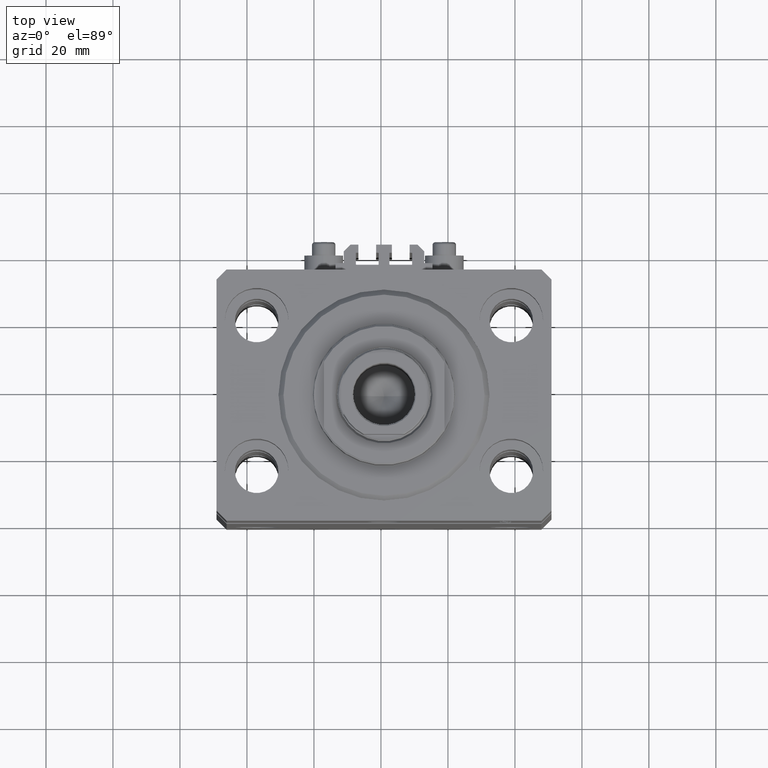
[diagram: clean part render]
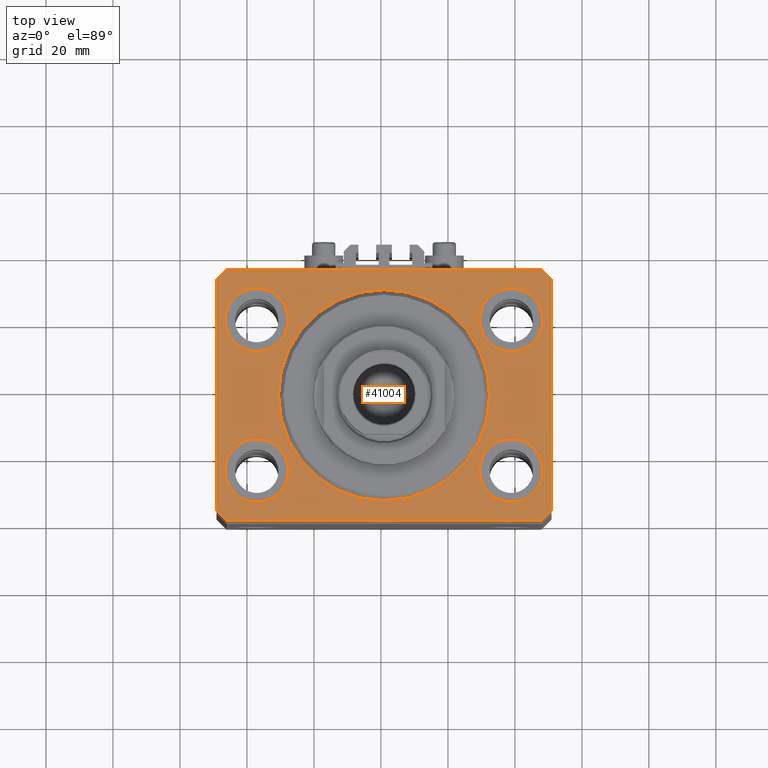
[diagram: same view with one face highlighted and labeled with its STEP entity id]
A machine part, top view. The second image highlights one B-rep face of the part: STEP entity #41004.
In plain terms, the highlighted planar face has unit normal (0, 0, 1).
Its self-contained STEP definition (entity closure, byte-faithful):
#192 = DIRECTION ( 'NONE',  ( 1.000000000000000000, 0.000000000000000000, 0.000000000000000000 ) ) ;
#778 = CARTESIAN_POINT ( 'NONE',  ( -50.00000000000000000, -34.50000000000000000, 0.000000000000000000 ) ) ;
#1196 = VECTOR ( 'NONE', #10112, 1000.000000000000000 ) ;
#1244 = DIRECTION ( 'NONE',  ( 1.000000000000000000, 0.000000000000000000, 0.000000000000000000 ) ) ;
#1389 = CARTESIAN_POINT ( 'NONE',  ( 28.50000000000000355, 22.50000000000001421, 0.000000000000000000 ) ) ;
#1971 = VERTEX_POINT ( 'NONE', #17000 ) ;
#2107 = VERTEX_POINT ( 'NONE', #21132 ) ;
#2744 = ORIENTED_EDGE ( 'NONE', *, *, #12785, .F. ) ;
#3197 = ORIENTED_EDGE ( 'NONE', *, *, #47906, .T. ) ;
#3221 = EDGE_CURVE ( 'NONE', #8132, #22936, #27393, .T. ) ;
#3361 = DIRECTION ( 'NONE',  ( 0.000000000000000000, 0.000000000000000000, 1.000000000000000000 ) ) ;
#3716 = VERTEX_POINT ( 'NONE', #38798 ) ;
#3733 = EDGE_CURVE ( 'NONE', #41837, #38277, #5393, .T. ) ;
#4122 = CARTESIAN_POINT ( 'NONE',  ( 0.000000000000000000, 0.000000000000000000, 0.000000000000000000 ) ) ;
#4661 = DIRECTION ( 'NONE',  ( 0.000000000000000000, 0.000000000000000000, 1.000000000000000000 ) ) ;
#4864 = VERTEX_POINT ( 'NONE', #26964 ) ;
#5261 = AXIS2_PLACEMENT_3D ( 'NONE', #9493, #14281, #6998 ) ;
#5393 = LINE ( 'NONE', #778, #28933 ) ;
#5867 = AXIS2_PLACEMENT_3D ( 'NONE', #12902, #12657, #39024 ) ;
#6266 = VERTEX_POINT ( 'NONE', #30150 ) ;
#6406 = VERTEX_POINT ( 'NONE', #34754 ) ;
#6494 = CARTESIAN_POINT ( 'NONE',  ( 47.00000000000056843, 37.49999999999999289, 0.000000000000000000 ) ) ;
#6998 = DIRECTION ( 'NONE',  ( 1.000000000000000000, 0.000000000000000000, 0.000000000000000000 ) ) ;
#7002 = CIRCLE ( 'NONE', #44392, 9.500000000000001776 ) ;
#7026 = CARTESIAN_POINT ( 'NONE',  ( 38.00000000000000711, -22.50000000000000000, 0.000000000000000000 ) ) ;
#7372 = CARTESIAN_POINT ( 'NONE',  ( 47.00000000000000000, -37.50000000000000711, 0.000000000000000000 ) ) ;
#7384 = CIRCLE ( 'NONE', #15926, 9.500000000000001776 ) ;
#8132 = VERTEX_POINT ( 'NONE', #44015 ) ;
#8179 = CARTESIAN_POINT ( 'NONE',  ( 50.00000000000000000, -34.50000000000000711, 0.000000000000000000 ) ) ;
#8291 = ORIENTED_EDGE ( 'NONE', *, *, #43514, .F. ) ;
#8559 = VECTOR ( 'NONE', #17693, 1000.000000000000000 ) ;
#8708 = AXIS2_PLACEMENT_3D ( 'NONE', #4122, #8725, #12361 ) ;
#8725 = DIRECTION ( 'NONE',  ( 0.000000000000000000, 0.000000000000000000, 1.000000000000000000 ) ) ;
#9060 = EDGE_CURVE ( 'NONE', #2107, #40246, #41680, .T. ) ;
#9265 = EDGE_CURVE ( 'NONE', #14742, #1971, #24439, .T. ) ;
#9493 = CARTESIAN_POINT ( 'NONE',  ( -38.00000000000000711, -22.50000000000000000, 0.000000000000000000 ) ) ;
#10112 = DIRECTION ( 'NONE',  ( 7.441712302741091634E-15, 1.000000000000000000, 0.000000000000000000 ) ) ;
#10260 = DIRECTION ( 'NONE',  ( 1.000000000000000000, 0.000000000000000000, 0.000000000000000000 ) ) ;
#10399 = EDGE_CURVE ( 'NONE', #38277, #6406, #10836, .T. ) ;
#10742 = DIRECTION ( 'NONE',  ( 1.000000000000000000, 0.000000000000000000, -0.000000000000000000 ) ) ;
#10836 = LINE ( 'NONE', #25723, #15896 ) ;
#10889 = VERTEX_POINT ( 'NONE', #24717 ) ;
#11843 = DIRECTION ( 'NONE',  ( 0.000000000000000000, 0.000000000000000000, 1.000000000000000000 ) ) ;
#12021 = ORIENTED_EDGE ( 'NONE', *, *, #10399, .T. ) ;
#12361 = DIRECTION ( 'NONE',  ( 1.000000000000000000, 0.000000000000000000, 0.000000000000000000 ) ) ;
#12507 = CARTESIAN_POINT ( 'NONE',  ( 38.00000000000000711, 22.50000000000001421, 0.000000000000000000 ) ) ;
#12657 = DIRECTION ( 'NONE',  ( 0.000000000000000000, 0.000000000000000000, 1.000000000000000000 ) ) ;
#12764 = EDGE_CURVE ( 'NONE', #24082, #10889, #40922, .T. ) ;
#12771 = DIRECTION ( 'NONE',  ( 0.000000000000000000, 0.000000000000000000, 1.000000000000000000 ) ) ;
#12785 = EDGE_CURVE ( 'NONE', #22936, #8132, #24541, .T. ) ;
#12849 = VERTEX_POINT ( 'NONE', #25090 ) ;
#12902 = CARTESIAN_POINT ( 'NONE',  ( -38.00000000000000711, 22.50000000000000000, 0.000000000000000000 ) ) ;
#13837 = DIRECTION ( 'NONE',  ( 0.000000000000000000, 0.000000000000000000, 1.000000000000000000 ) ) ;
#14006 = CARTESIAN_POINT ( 'NONE',  ( 50.00000000000000000, -34.50000000000000711, 0.000000000000000000 ) ) ;
#14281 = DIRECTION ( 'NONE',  ( 0.000000000000000000, 0.000000000000000000, 1.000000000000000000 ) ) ;
#14394 = CARTESIAN_POINT ( 'NONE',  ( 0.000000000000000000, 0.000000000000000000, 0.000000000000000000 ) ) ;
#14639 = EDGE_CURVE ( 'NONE', #18501, #6266, #46412, .T. ) ;
#14707 = EDGE_CURVE ( 'NONE', #20860, #41837, #19652, .T. ) ;
#14742 = VERTEX_POINT ( 'NONE', #1389 ) ;
#14801 = EDGE_CURVE ( 'NONE', #6266, #18501, #7384, .T. ) ;
#15618 = DIRECTION ( 'NONE',  ( 0.7071067811865491270, -0.7071067811865459074, 0.000000000000000000 ) ) ;
#15753 = CARTESIAN_POINT ( 'NONE',  ( -50.00000000000001421, 34.50000000000000000, 0.000000000000000000 ) ) ;
#15896 = VECTOR ( 'NONE', #36945, 1000.000000000000000 ) ;
#15926 = AXIS2_PLACEMENT_3D ( 'NONE', #31599, #11843, #26727 ) ;
#16440 = CARTESIAN_POINT ( 'NONE',  ( -50.00000000000000000, -34.50000000000000000, 0.000000000000000000 ) ) ;
#16549 = ORIENTED_EDGE ( 'NONE', *, *, #14707, .T. ) ;
#16841 = AXIS2_PLACEMENT_3D ( 'NONE', #23515, #12771, #10260 ) ;
#16896 = CARTESIAN_POINT ( 'NONE',  ( -47.00000000000000000, -37.49999999999999289, 0.000000000000000000 ) ) ;
#16965 = EDGE_LOOP ( 'NONE', ( #21502, #37317, #16549, #27517, #12021, #3197, #41868, #42587 ) ) ;
#17000 = CARTESIAN_POINT ( 'NONE',  ( 47.50000000000000711, 22.50000000000001421, 0.000000000000000000 ) ) ;
#17693 = DIRECTION ( 'NONE',  ( -1.000000000000000000, 7.381802025433175941E-17, 0.000000000000000000 ) ) ;
#17751 = ORIENTED_EDGE ( 'NONE', *, *, #14639, .F. ) ;
#18060 = FACE_BOUND ( 'NONE', #36983, .T. ) ;
#18501 = VERTEX_POINT ( 'NONE', #44735 ) ;
#19343 = VERTEX_POINT ( 'NONE', #8179 ) ;
#19418 = DIRECTION ( 'NONE',  ( 2.011273595335428326E-16, -1.000000000000000000, 0.000000000000000000 ) ) ;
#19652 = LINE ( 'NONE', #15753, #35392 ) ;
#20860 = VERTEX_POINT ( 'NONE', #27325 ) ;
#21132 = CARTESIAN_POINT ( 'NONE',  ( 50.00000000000051870, 34.49999999999995026, 0.000000000000000000 ) ) ;
#21502 = ORIENTED_EDGE ( 'NONE', *, *, #27723, .T. ) ;
#21760 = DIRECTION ( 'NONE',  ( 0.7071067811865483499, 0.7071067811865466846, 0.000000000000000000 ) ) ;
#22689 = FACE_BOUND ( 'NONE', #27010, .T. ) ;
#22936 = VERTEX_POINT ( 'NONE', #26794 ) ;
#23054 = ORIENTED_EDGE ( 'NONE', *, *, #3221, .F. ) ;
#23088 = EDGE_CURVE ( 'NONE', #4864, #12849, #45815, .T. ) ;
#23515 = CARTESIAN_POINT ( 'NONE',  ( -38.00000000000000711, 22.50000000000000000, 0.000000000000000000 ) ) ;
#23665 = VECTOR ( 'NONE', #35549, 1000.000000000000114 ) ;
#24082 = VERTEX_POINT ( 'NONE', #45311 ) ;
#24276 = ORIENTED_EDGE ( 'NONE', *, *, #40845, .F. ) ;
#24439 = CIRCLE ( 'NONE', #35330, 9.500000000000001776 ) ;
#24541 = CIRCLE ( 'NONE', #30767, 31.50000000000000000 ) ;
#24717 = CARTESIAN_POINT ( 'NONE',  ( -28.50000000000000355, 22.50000000000000000, 0.000000000000000000 ) ) ;
#25090 = CARTESIAN_POINT ( 'NONE',  ( -47.50000000000000711, -22.50000000000000000, 0.000000000000000000 ) ) ;
#25723 = CARTESIAN_POINT ( 'NONE',  ( -47.00000000000000000, -37.49999999999999289, 0.000000000000000000 ) ) ;
#25891 = LINE ( 'NONE', #7372, #44250 ) ;
#26087 = ORIENTED_EDGE ( 'NONE', *, *, #9265, .F. ) ;
#26270 = CIRCLE ( 'NONE', #5261, 9.500000000000001776 ) ;
#26727 = DIRECTION ( 'NONE',  ( 1.000000000000000000, 0.000000000000000000, 0.000000000000000000 ) ) ;
#26794 = CARTESIAN_POINT ( 'NONE',  ( -31.50000000000000000, 3.857637417314162689E-15, 0.000000000000000000 ) ) ;
#26964 = CARTESIAN_POINT ( 'NONE',  ( -28.50000000000000355, -22.50000000000000000, 0.000000000000000000 ) ) ;
#27010 = EDGE_LOOP ( 'NONE', ( #47563, #8291 ) ) ;
#27325 = CARTESIAN_POINT ( 'NONE',  ( -50.00000000000001421, 34.50000000000000000, 0.000000000000000000 ) ) ;
#27393 = CIRCLE ( 'NONE', #8708, 31.50000000000000000 ) ;
#27517 = ORIENTED_EDGE ( 'NONE', *, *, #3733, .T. ) ;
#27723 = EDGE_CURVE ( 'NONE', #40246, #3716, #39897, .T. ) ;
#27735 = CIRCLE ( 'NONE', #16841, 9.500000000000001776 ) ;
#27917 = AXIS2_PLACEMENT_3D ( 'NONE', #43379, #13837, #31914 ) ;
#27943 = EDGE_LOOP ( 'NONE', ( #24276, #42846 ) ) ;
#28329 = ORIENTED_EDGE ( 'NONE', *, *, #30055, .F. ) ;
#28469 = EDGE_LOOP ( 'NONE', ( #17751, #29292 ) ) ;
#28933 = VECTOR ( 'NONE', #15618, 1000.000000000000114 ) ;
#29281 = DIRECTION ( 'NONE',  ( 0.000000000000000000, 0.000000000000000000, 1.000000000000000000 ) ) ;
#29292 = ORIENTED_EDGE ( 'NONE', *, *, #14801, .F. ) ;
#29764 = FACE_BOUND ( 'NONE', #28469, .T. ) ;
#30055 = EDGE_CURVE ( 'NONE', #1971, #14742, #7002, .T. ) ;
#30150 = CARTESIAN_POINT ( 'NONE',  ( 28.50000000000000355, -22.50000000000000000, 0.000000000000000000 ) ) ;
#30583 = VECTOR ( 'NONE', #39119, 1000.000000000000000 ) ;
#30767 = AXIS2_PLACEMENT_3D ( 'NONE', #38053, #4661, #1244 ) ;
#31542 = LINE ( 'NONE', #46431, #30583 ) ;
#31599 = CARTESIAN_POINT ( 'NONE',  ( 38.00000000000000711, -22.50000000000000000, 0.000000000000000000 ) ) ;
#31914 = DIRECTION ( 'NONE',  ( 1.000000000000000000, 0.000000000000000000, 0.000000000000000000 ) ) ;
#32731 = CARTESIAN_POINT ( 'NONE',  ( 38.00000000000000711, 22.50000000000001421, 0.000000000000000000 ) ) ;
#32941 = FACE_OUTER_BOUND ( 'NONE', #16965, .T. ) ;
#33341 = EDGE_CURVE ( 'NONE', #3716, #20860, #31542, .T. ) ;
#34703 = DIRECTION ( 'NONE',  ( 1.000000000000000000, 0.000000000000000000, 0.000000000000000000 ) ) ;
#34754 = CARTESIAN_POINT ( 'NONE',  ( 47.00000000000000000, -37.50000000000000711, 0.000000000000000000 ) ) ;
#35330 = AXIS2_PLACEMENT_3D ( 'NONE', #12507, #38138, #34703 ) ;
#35392 = VECTOR ( 'NONE', #19418, 1000.000000000000000 ) ;
#35549 = DIRECTION ( 'NONE',  ( -0.7071067811865361374, 0.7071067811865588970, 0.000000000000000000 ) ) ;
#36945 = DIRECTION ( 'NONE',  ( 1.000000000000000000, -1.476360405086644309E-16, 0.000000000000000000 ) ) ;
#36983 = EDGE_LOOP ( 'NONE', ( #23054, #2744 ) ) ;
#37317 = ORIENTED_EDGE ( 'NONE', *, *, #33341, .T. ) ;
#37562 = CARTESIAN_POINT ( 'NONE',  ( 47.00000000000056843, 37.49999999999999289, 0.000000000000000000 ) ) ;
#38024 = EDGE_CURVE ( 'NONE', #19343, #2107, #43550, .T. ) ;
#38053 = CARTESIAN_POINT ( 'NONE',  ( 0.000000000000000000, 0.000000000000000000, 0.000000000000000000 ) ) ;
#38138 = DIRECTION ( 'NONE',  ( 0.000000000000000000, 0.000000000000000000, 1.000000000000000000 ) ) ;
#38277 = VERTEX_POINT ( 'NONE', #16896 ) ;
#38798 = CARTESIAN_POINT ( 'NONE',  ( -47.00000000000001421, 37.50000000000000000, 0.000000000000000000 ) ) ;
#39024 = DIRECTION ( 'NONE',  ( 1.000000000000000000, 0.000000000000000000, 0.000000000000000000 ) ) ;
#39119 = DIRECTION ( 'NONE',  ( -0.7071067811865483499, -0.7071067811865466846, 0.000000000000000000 ) ) ;
#39225 = CARTESIAN_POINT ( 'NONE',  ( 50.00000000000051870, 34.49999999999995026, 0.000000000000000000 ) ) ;
#39453 = AXIS2_PLACEMENT_3D ( 'NONE', #14394, #29281, #10742 ) ;
#39897 = LINE ( 'NONE', #6494, #8559 ) ;
#40246 = VERTEX_POINT ( 'NONE', #37562 ) ;
#40297 = DIRECTION ( 'NONE',  ( 0.000000000000000000, 0.000000000000000000, 1.000000000000000000 ) ) ;
#40845 = EDGE_CURVE ( 'NONE', #10889, #24082, #27735, .T. ) ;
#40922 = CIRCLE ( 'NONE', #5867, 9.500000000000001776 ) ;
#41004 = ADVANCED_FACE ( 'NONE', ( #22689, #29764, #41240, #47591, #18060, #32941 ), #47826, .T. ) ;
#41240 = FACE_BOUND ( 'NONE', #42956, .T. ) ;
#41680 = LINE ( 'NONE', #39225, #23665 ) ;
#41837 = VERTEX_POINT ( 'NONE', #16440 ) ;
#41868 = ORIENTED_EDGE ( 'NONE', *, *, #38024, .T. ) ;
#42587 = ORIENTED_EDGE ( 'NONE', *, *, #9060, .T. ) ;
#42846 = ORIENTED_EDGE ( 'NONE', *, *, #12764, .F. ) ;
#42956 = EDGE_LOOP ( 'NONE', ( #28329, #26087 ) ) ;
#43379 = CARTESIAN_POINT ( 'NONE',  ( -38.00000000000000711, -22.50000000000000000, 0.000000000000000000 ) ) ;
#43514 = EDGE_CURVE ( 'NONE', #12849, #4864, #26270, .T. ) ;
#43550 = LINE ( 'NONE', #14006, #1196 ) ;
#44015 = CARTESIAN_POINT ( 'NONE',  ( 31.50000000000000000, 0.000000000000000000, 0.000000000000000000 ) ) ;
#44206 = DIRECTION ( 'NONE',  ( 1.000000000000000000, 0.000000000000000000, 0.000000000000000000 ) ) ;
#44250 = VECTOR ( 'NONE', #21760, 1000.000000000000000 ) ;
#44392 = AXIS2_PLACEMENT_3D ( 'NONE', #32731, #40297, #44206 ) ;
#44735 = CARTESIAN_POINT ( 'NONE',  ( 47.50000000000000711, -22.50000000000000000, 0.000000000000000000 ) ) ;
#45311 = CARTESIAN_POINT ( 'NONE',  ( -47.50000000000000711, 22.50000000000000000, 0.000000000000000000 ) ) ;
#45815 = CIRCLE ( 'NONE', #27917, 9.500000000000001776 ) ;
#46412 = CIRCLE ( 'NONE', #47867, 9.500000000000001776 ) ;
#46431 = CARTESIAN_POINT ( 'NONE',  ( -47.00000000000001421, 37.50000000000000000, 0.000000000000000000 ) ) ;
#47563 = ORIENTED_EDGE ( 'NONE', *, *, #23088, .F. ) ;
#47591 = FACE_BOUND ( 'NONE', #27943, .T. ) ;
#47826 = PLANE ( 'NONE',  #39453 ) ;
#47867 = AXIS2_PLACEMENT_3D ( 'NONE', #7026, #3361, #192 ) ;
#47906 = EDGE_CURVE ( 'NONE', #6406, #19343, #25891, .T. ) ;